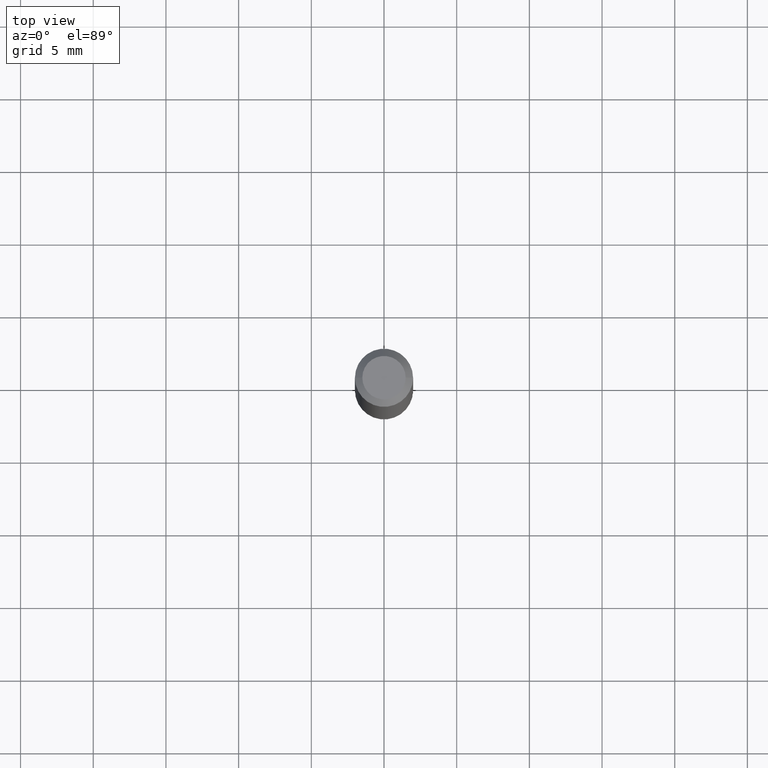
[diagram: clean part render]
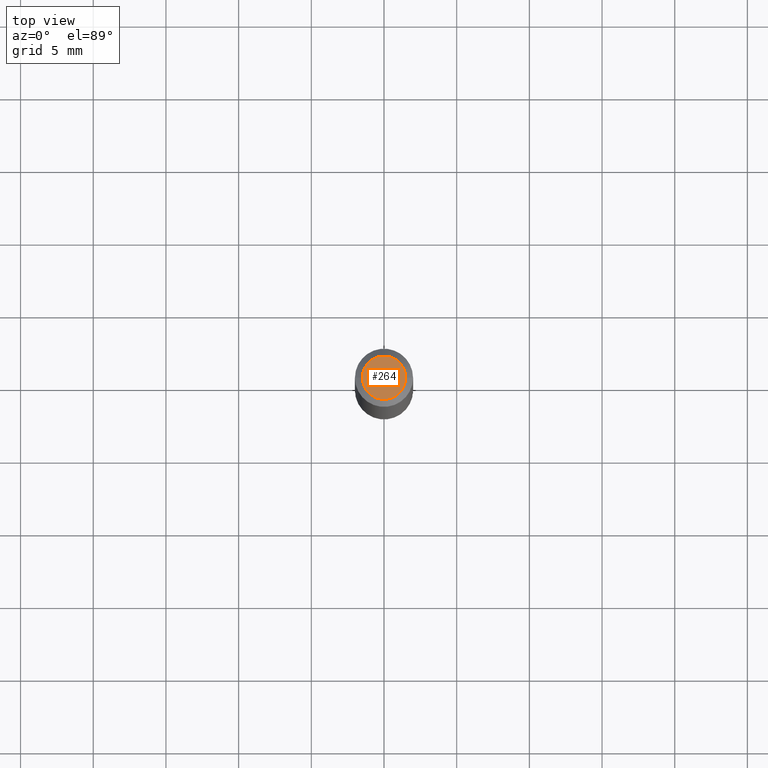
[diagram: same view with one face highlighted and labeled with its STEP entity id]
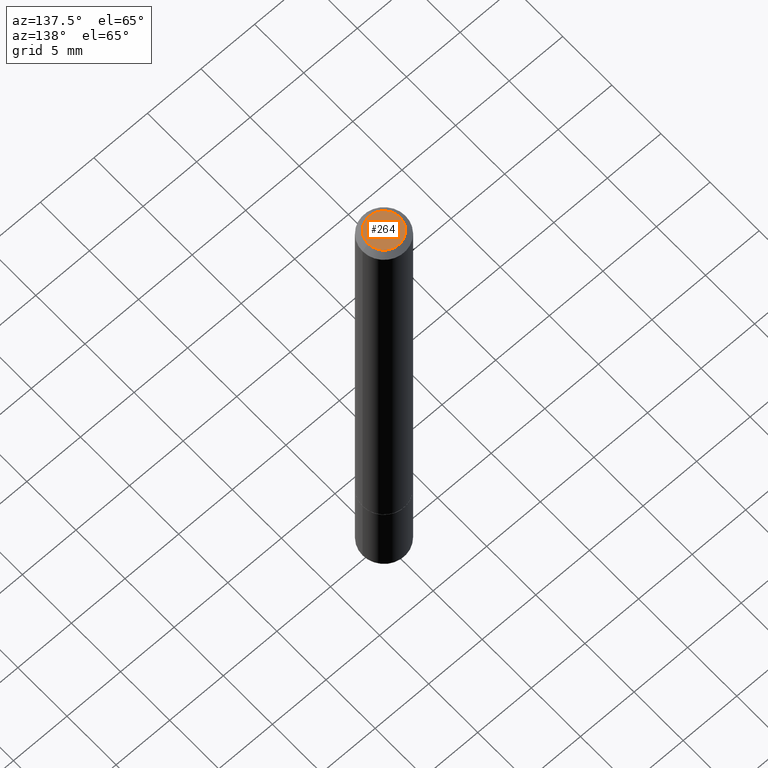
[diagram: same view with one face highlighted and labeled with its STEP entity id]
A machine part, top view. The second image highlights one B-rep face of the part: STEP entity #264.
A second angle (auxiliary view) of the same face is appended — the face is thin or edge-on in the first view.
In plain terms, the highlighted planar face has unit normal (0, -0, -1).
Its self-contained STEP definition (entity closure, byte-faithful):
#8 = DIRECTION ( 'NONE',  ( -1.000000000000000000, 6.982962677686265922E-15, -4.876176775795935793E-29 ) ) ;
#17 = AXIS2_PLACEMENT_3D ( 'NONE', #161, #284, #18 ) ;
#18 = DIRECTION ( 'NONE',  ( 1.000000000000000000, -6.982962677686266711E-15, 4.876936021010750548E-29 ) ) ;
#37 = CARTESIAN_POINT ( 'NONE',  ( 4.102490573140667000E-16, 0.05874999999999980238, -2.029902724119839009E-16 ) ) ;
#60 = CARTESIAN_POINT ( 'NONE',  ( -0.05874999999999980238, 4.451638707024978067E-16, 4.268512490097420695E-18 ) ) ;
#114 = DIRECTION ( 'NONE',  ( -2.445468806185136597E-29, 3.491481338843145583E-15, 1.000000000000000000 ) ) ;
#138 = FACE_OUTER_BOUND ( 'NONE', #240, .T. ) ;
#161 = CARTESIAN_POINT ( 'NONE',  ( -1.043851414335219820E-46, 1.490343170380447200E-32, 4.268512490100411279E-18 ) ) ;
#172 = PLANE ( 'NONE',  #295 ) ;
#180 = EDGE_CURVE ( 'NONE', #290, #361, #278, .T. ) ;
#212 = CARTESIAN_POINT ( 'NONE',  ( 0.05874999999999980238, -5.065740507352228268E-16, 4.268512490103616797E-18 ) ) ;
#240 = EDGE_LOOP ( 'NONE', ( #267, #273 ) ) ;
#249 = CIRCLE ( 'NONE', #17, 0.05874999999999980238 ) ;
#256 = CARTESIAN_POINT ( 'NONE',  ( -1.043851414335219820E-46, 1.490343170380447200E-32, 4.268512490100411279E-18 ) ) ;
#258 = DIRECTION ( 'NONE',  ( 2.438088387897960049E-29, -3.491481338843145188E-15, -1.000000000000000000 ) ) ;
#264 = ADVANCED_FACE ( 'NONE', ( #138 ), #172, .F. ) ;
#267 = ORIENTED_EDGE ( 'NONE', *, *, #180, .T. ) ;
#273 = ORIENTED_EDGE ( 'NONE', *, *, #334, .T. ) ;
#278 = CIRCLE ( 'NONE', #323, 0.05874999999999980238 ) ;
#284 = DIRECTION ( 'NONE',  ( -2.445468806185136597E-29, 3.491481338843145583E-15, 1.000000000000000000 ) ) ;
#290 = VERTEX_POINT ( 'NONE', #60 ) ;
#295 = AXIS2_PLACEMENT_3D ( 'NONE', #37, #258, #8 ) ;
#323 = AXIS2_PLACEMENT_3D ( 'NONE', #256, #114, #339 ) ;
#334 = EDGE_CURVE ( 'NONE', #361, #290, #249, .T. ) ;
#339 = DIRECTION ( 'NONE',  ( 1.000000000000000000, -6.982962677686266711E-15, 4.876936021010750548E-29 ) ) ;
#361 = VERTEX_POINT ( 'NONE', #212 ) ;